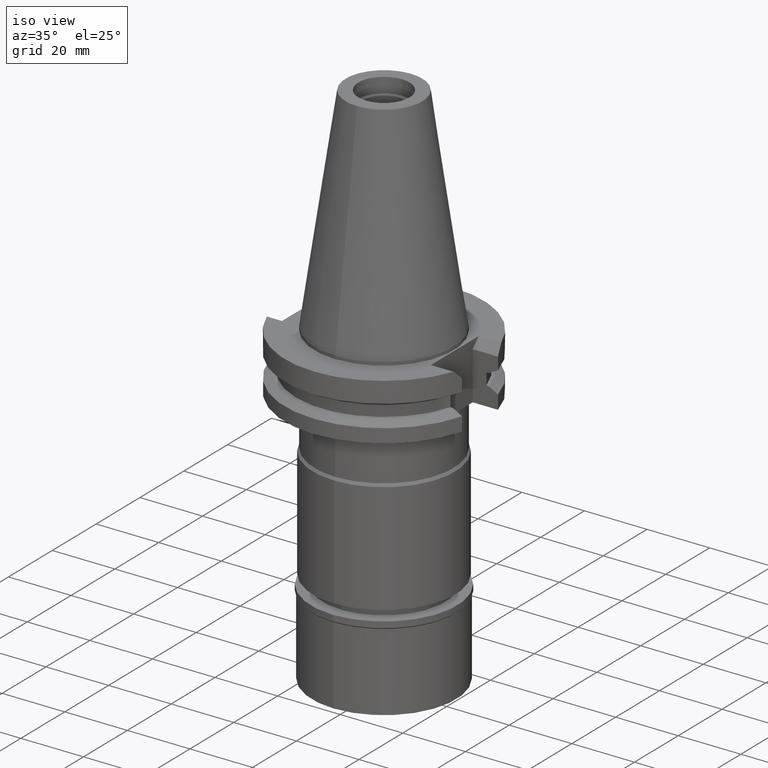
[diagram: clean part render]
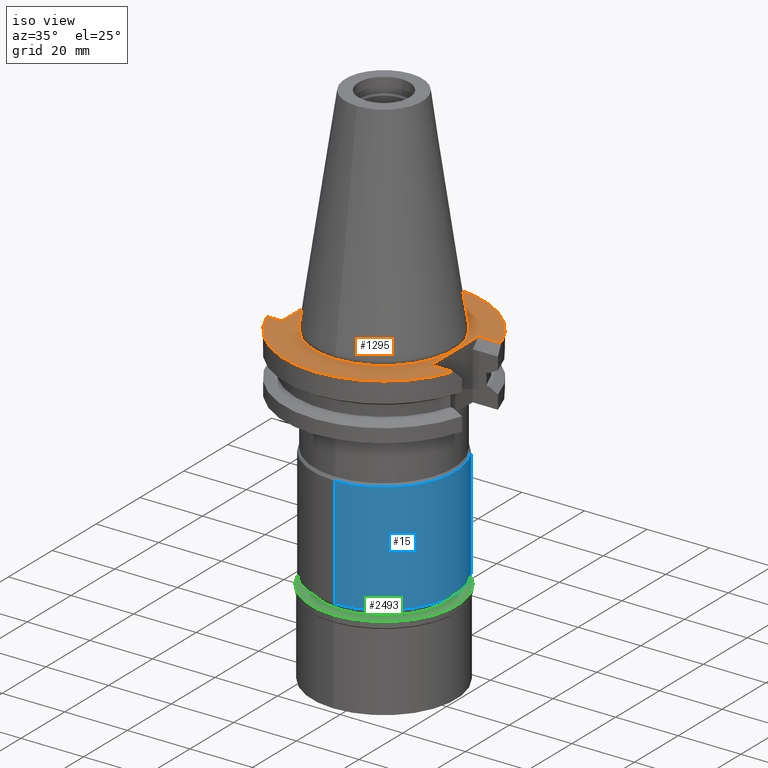
[diagram: same view with three faces highlighted in distinct colors, each labeled with its STEP entity id]
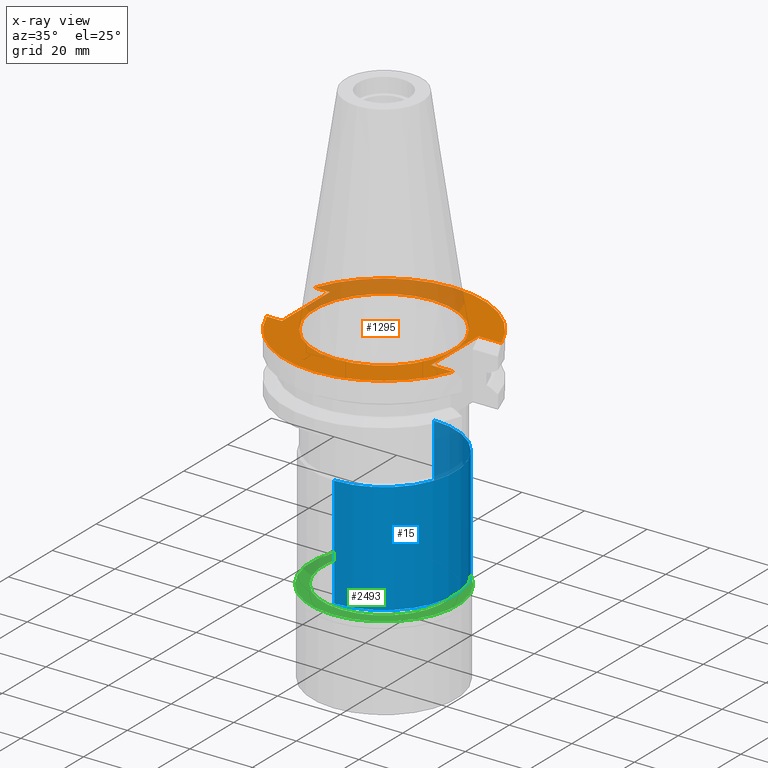
[diagram: x-ray of the same camera — body ghosted, the three highlighted faces saturated]
A machine part, iso view with three faces highlighted in distinct colors.
The next image is the same camera in x-ray (body ghosted, the three faces saturated) — at least one of them is partly hidden behind the body in this view.
Their STEP definitions:

[orange] entity #1295 — the highlighted planar face has unit normal (0, 0, -1).
#57 = EDGE_CURVE ( 'NONE', #220, #93, #2300, .T. ) ;
#93 = VERTEX_POINT ( 'NONE', #1527 ) ;
#121 = EDGE_LOOP ( 'NONE', ( #1887, #1173 ) ) ;
#161 = CARTESIAN_POINT ( 'NONE',  ( 0.0000000000000000000, 1.212400331155999925E-14, -1.000000000000000000 ) ) ;
#201 = DIRECTION ( 'NONE',  ( 0.0000000000000000000, -1.000000000000000000, 0.0000000000000000000 ) ) ;
#202 = EDGE_CURVE ( 'NONE', #1809, #1484, #353, .T. ) ;
#218 = CIRCLE ( 'NONE', #2462, 22.22500000000000142 ) ;
#220 = VERTEX_POINT ( 'NONE', #1641 ) ;
#246 = CIRCLE ( 'NONE', #459, 31.75000000000000000 ) ;
#251 = CARTESIAN_POINT ( 'NONE',  ( -29.82399034335000110, -10.89000000000000057, -1.000000000001000089 ) ) ;
#290 = VECTOR ( 'NONE', #1985, 1000.000000000000000 ) ;
#353 = LINE ( 'NONE', #2600, #1457 ) ;
#378 = CARTESIAN_POINT ( 'NONE',  ( 0.0000000000000000000, 2.157735811588000074E-14, -1.000000000000000000 ) ) ;
#400 = CARTESIAN_POINT ( 'NONE',  ( 22.57000000000000028, 10.89000000000000057, -1.000000000000000000 ) ) ;
#443 = CARTESIAN_POINT ( 'NONE',  ( -24.98000000000000043, -10.89000000000000057, -1.000000000000000000 ) ) ;
#459 = AXIS2_PLACEMENT_3D ( 'NONE', #378, #2976, #2687 ) ;
#505 = CARTESIAN_POINT ( 'NONE',  ( 22.57000000000000028, 10.89000000000000057, -1.000000000000000000 ) ) ;
#540 = EDGE_CURVE ( 'NONE', #1484, #2759, #1601, .T. ) ;
#633 = VERTEX_POINT ( 'NONE', #2549 ) ;
#651 = DIRECTION ( 'NONE',  ( 0.0000000000000000000, 0.0000000000000000000, -1.000000000000000000 ) ) ;
#665 = ORIENTED_EDGE ( 'NONE', *, *, #202, .T. ) ;
#798 = ORIENTED_EDGE ( 'NONE', *, *, #2531, .F. ) ;
#906 = DIRECTION ( 'NONE',  ( 1.000000000000000000, 5.877118954907999932E-14, 0.0000000000000000000 ) ) ;
#960 = CARTESIAN_POINT ( 'NONE',  ( 0.0000000000000000000, 2.157735811588000074E-14, -1.000000000000000000 ) ) ;
#986 = DIRECTION ( 'NONE',  ( 0.0000000000000000000, -1.000000000000000000, 0.0000000000000000000 ) ) ;
#989 = EDGE_CURVE ( 'NONE', #1809, #1712, #1501, .T. ) ;
#992 = DIRECTION ( 'NONE',  ( 0.0000000000000000000, 1.000000000000000000, 0.0000000000000000000 ) ) ;
#1003 = VERTEX_POINT ( 'NONE', #1950 ) ;
#1016 = CARTESIAN_POINT ( 'NONE',  ( -29.82399034335000110, 10.89000000000000057, -1.000000000000000000 ) ) ;
#1039 = DIRECTION ( 'NONE',  ( -1.000000000000000000, 8.727782216946000332E-14, 0.0000000000000000000 ) ) ;
#1058 = DIRECTION ( 'NONE',  ( 1.000000000000000000, -5.779166972325999752E-14, 0.0000000000000000000 ) ) ;
#1132 = FACE_BOUND ( 'NONE', #121, .T. ) ;
#1173 = ORIENTED_EDGE ( 'NONE', *, *, #3069, .F. ) ;
#1241 = AXIS2_PLACEMENT_3D ( 'NONE', #2406, #2941, #1409 ) ;
#1294 = EDGE_CURVE ( 'NONE', #93, #633, #1676, .T. ) ;
#1295 = ADVANCED_FACE ( 'NONE', ( #2117, #1132 ), #2898, .F. ) ;
#1369 = CARTESIAN_POINT ( 'NONE',  ( -24.98000000000000043, 10.89000000000000057, -1.000000000000000000 ) ) ;
#1399 = VERTEX_POINT ( 'NONE', #1846 ) ;
#1409 = DIRECTION ( 'NONE',  ( 0.0000000000000000000, 1.000000000000000000, 0.0000000000000000000 ) ) ;
#1423 = EDGE_CURVE ( 'NONE', #633, #2759, #246, .T. ) ;
#1457 = VECTOR ( 'NONE', #1825, 1000.000000000000000 ) ;
#1484 = VERTEX_POINT ( 'NONE', #443 ) ;
#1501 = LINE ( 'NONE', #3209, #290 ) ;
#1527 = CARTESIAN_POINT ( 'NONE',  ( 22.57000000000000028, -10.89000000000000057, -1.000000000000000000 ) ) ;
#1584 = CARTESIAN_POINT ( 'NONE',  ( -24.98000000000000043, -10.89000000000000057, -1.000000000000000000 ) ) ;
#1601 = LINE ( 'NONE', #1584, #2838 ) ;
#1641 = CARTESIAN_POINT ( 'NONE',  ( 22.57000000000000028, 10.89000000000000057, -1.000000000000000000 ) ) ;
#1662 = VECTOR ( 'NONE', #906, 1000.000000000000000 ) ;
#1676 = LINE ( 'NONE', #2157, #1662 ) ;
#1712 = VERTEX_POINT ( 'NONE', #1016 ) ;
#1787 = CIRCLE ( 'NONE', #2863, 22.22500000000000142 ) ;
#1809 = VERTEX_POINT ( 'NONE', #1369 ) ;
#1825 = DIRECTION ( 'NONE',  ( 0.0000000000000000000, -1.000000000000000000, 0.0000000000000000000 ) ) ;
#1846 = CARTESIAN_POINT ( 'NONE',  ( 29.82399034335000110, 10.89000000000000057, -1.000000000001000089 ) ) ;
#1884 = LINE ( 'NONE', #400, #2499 ) ;
#1887 = ORIENTED_EDGE ( 'NONE', *, *, #3148, .F. ) ;
#1950 = CARTESIAN_POINT ( 'NONE',  ( 0.0000000000000000000, 22.22500000000000142, -1.000000000000000000 ) ) ;
#1985 = DIRECTION ( 'NONE',  ( -1.000000000000000000, -8.727782216946000332E-14, 0.0000000000000000000 ) ) ;
#2003 = DIRECTION ( 'NONE',  ( 0.0000000000000000000, 0.0000000000000000000, 1.000000000000000000 ) ) ;
#2102 = DIRECTION ( 'NONE',  ( 0.0000000000000000000, -1.000000000000000000, 0.0000000000000000000 ) ) ;
#2117 = FACE_OUTER_BOUND ( 'NONE', #2282, .T. ) ;
#2157 = CARTESIAN_POINT ( 'NONE',  ( 22.57000000000000028, -10.89000000000000057, -1.000000000000000000 ) ) ;
#2282 = EDGE_LOOP ( 'NONE', ( #3003, #798, #2460, #665, #2414, #2560, #2404, #2730 ) ) ;
#2300 = LINE ( 'NONE', #505, #2995 ) ;
#2324 = VERTEX_POINT ( 'NONE', #2839 ) ;
#2404 = ORIENTED_EDGE ( 'NONE', *, *, #1294, .F. ) ;
#2406 = CARTESIAN_POINT ( 'NONE',  ( 0.0000000000000000000, 2.157735811588000074E-14, -1.000000000000000000 ) ) ;
#2414 = ORIENTED_EDGE ( 'NONE', *, *, #540, .T. ) ;
#2424 = EDGE_CURVE ( 'NONE', #220, #1399, #1884, .T. ) ;
#2427 = DIRECTION ( 'NONE',  ( 0.0000000000000000000, 0.0000000000000000000, 1.000000000000000000 ) ) ;
#2446 = CARTESIAN_POINT ( 'NONE',  ( 0.0000000000000000000, 2.157735811588000074E-14, -1.000000000000000000 ) ) ;
#2460 = ORIENTED_EDGE ( 'NONE', *, *, #989, .F. ) ;
#2462 = AXIS2_PLACEMENT_3D ( 'NONE', #2446, #2427, #201 ) ;
#2499 = VECTOR ( 'NONE', #1058, 1000.000000000000000 ) ;
#2531 = EDGE_CURVE ( 'NONE', #1712, #1399, #2648, .T. ) ;
#2549 = CARTESIAN_POINT ( 'NONE',  ( 29.82399034335000110, -10.89000000000000057, -1.000000000001000089 ) ) ;
#2560 = ORIENTED_EDGE ( 'NONE', *, *, #1423, .F. ) ;
#2600 = CARTESIAN_POINT ( 'NONE',  ( -24.98000000000000043, 10.89000000000000057, -1.000000000000000000 ) ) ;
#2648 = CIRCLE ( 'NONE', #1241, 31.75000000000000000 ) ;
#2687 = DIRECTION ( 'NONE',  ( 0.0000000000000000000, -1.000000000000000000, 0.0000000000000000000 ) ) ;
#2730 = ORIENTED_EDGE ( 'NONE', *, *, #57, .F. ) ;
#2759 = VERTEX_POINT ( 'NONE', #251 ) ;
#2838 = VECTOR ( 'NONE', #1039, 1000.000000000000000 ) ;
#2839 = CARTESIAN_POINT ( 'NONE',  ( 0.0000000000000000000, -22.22500000000000142, -1.000000000000000000 ) ) ;
#2863 = AXIS2_PLACEMENT_3D ( 'NONE', #960, #2003, #992 ) ;
#2898 = PLANE ( 'NONE',  #3208 ) ;
#2941 = DIRECTION ( 'NONE',  ( 0.0000000000000000000, 0.0000000000000000000, -1.000000000000000000 ) ) ;
#2976 = DIRECTION ( 'NONE',  ( 0.0000000000000000000, 0.0000000000000000000, -1.000000000000000000 ) ) ;
#2995 = VECTOR ( 'NONE', #986, 1000.000000000000000 ) ;
#3003 = ORIENTED_EDGE ( 'NONE', *, *, #2424, .T. ) ;
#3069 = EDGE_CURVE ( 'NONE', #2324, #1003, #218, .T. ) ;
#3148 = EDGE_CURVE ( 'NONE', #1003, #2324, #1787, .T. ) ;
#3208 = AXIS2_PLACEMENT_3D ( 'NONE', #161, #651, #2102 ) ;
#3209 = CARTESIAN_POINT ( 'NONE',  ( -24.98000000000000043, 10.89000000000000057, -1.000000000000000000 ) ) ;

[blue] entity #15 — the highlighted cylindrical surface (partial cylindrical patch) has radius 22.75 mm, axis along (0, 0, -1).
#15 = ADVANCED_FACE ( 'NONE', ( #2046 ), #2765, .T. ) ;
#29 = AXIS2_PLACEMENT_3D ( 'NONE', #2558, #1543, #2510 ) ;
#73 = CARTESIAN_POINT ( 'NONE',  ( 0.0000000000000000000, -22.75000000000000000, -35.90932667396999278 ) ) ;
#165 = DIRECTION ( 'NONE',  ( 0.0000000000000000000, 0.0000000000000000000, 1.000000000000000000 ) ) ;
#495 = CARTESIAN_POINT ( 'NONE',  ( 0.0000000000000000000, -22.75000000000000000, -71.40000000000000568 ) ) ;
#497 = ORIENTED_EDGE ( 'NONE', *, *, #770, .T. ) ;
#506 = EDGE_LOOP ( 'NONE', ( #3170, #1077, #497, #1151 ) ) ;
#622 = VECTOR ( 'NONE', #3144, 1000.000000000000000 ) ;
#653 = CARTESIAN_POINT ( 'NONE',  ( 0.0000000000000000000, 2.157735811588000074E-14, -71.40000000000000568 ) ) ;
#735 = EDGE_CURVE ( 'NONE', #2577, #2127, #1452, .T. ) ;
#770 = EDGE_CURVE ( 'NONE', #3082, #1419, #2482, .T. ) ;
#1072 = VECTOR ( 'NONE', #2477, 1000.000000000000000 ) ;
#1077 = ORIENTED_EDGE ( 'NONE', *, *, #2002, .T. ) ;
#1151 = ORIENTED_EDGE ( 'NONE', *, *, #2530, .F. ) ;
#1176 = CARTESIAN_POINT ( 'NONE',  ( 0.0000000000000000000, -22.75000000000000000, -35.90932667396999278 ) ) ;
#1419 = VERTEX_POINT ( 'NONE', #2605 ) ;
#1452 = CIRCLE ( 'NONE', #1850, 22.75000000000000000 ) ;
#1543 = DIRECTION ( 'NONE',  ( 0.0000000000000000000, 0.0000000000000000000, -1.000000000000000000 ) ) ;
#1850 = AXIS2_PLACEMENT_3D ( 'NONE', #2120, #1901, #2864 ) ;
#1901 = DIRECTION ( 'NONE',  ( 0.0000000000000000000, 0.0000000000000000000, -1.000000000000000000 ) ) ;
#1943 = CARTESIAN_POINT ( 'NONE',  ( 0.0000000000000000000, 22.75000000000000000, -35.90932667396999278 ) ) ;
#2002 = EDGE_CURVE ( 'NONE', #2127, #3082, #2230, .T. ) ;
#2046 = FACE_OUTER_BOUND ( 'NONE', #506, .T. ) ;
#2120 = CARTESIAN_POINT ( 'NONE',  ( 0.0000000000000000000, 0.0000000000000000000, -35.90932667396999278 ) ) ;
#2127 = VERTEX_POINT ( 'NONE', #73 ) ;
#2130 = AXIS2_PLACEMENT_3D ( 'NONE', #653, #165, #2609 ) ;
#2230 = LINE ( 'NONE', #1176, #1072 ) ;
#2477 = DIRECTION ( 'NONE',  ( 0.0000000000000000000, -4.134243202054000170E-14, -1.000000000000000000 ) ) ;
#2482 = CIRCLE ( 'NONE', #2130, 22.75000000000000000 ) ;
#2510 = DIRECTION ( 'NONE',  ( 0.0000000000000000000, -1.000000000000000000, 0.0000000000000000000 ) ) ;
#2530 = EDGE_CURVE ( 'NONE', #2577, #1419, #3158, .T. ) ;
#2558 = CARTESIAN_POINT ( 'NONE',  ( 0.0000000000000000000, 2.157735811588000074E-14, 76.19249999999999545 ) ) ;
#2577 = VERTEX_POINT ( 'NONE', #1943 ) ;
#2605 = CARTESIAN_POINT ( 'NONE',  ( 0.0000000000000000000, 22.75000000000000000, -71.40000000000000568 ) ) ;
#2609 = DIRECTION ( 'NONE',  ( 0.0000000000000000000, -1.000000000000000000, 0.0000000000000000000 ) ) ;
#2765 = CYLINDRICAL_SURFACE ( 'NONE', #29, 22.75000000000000000 ) ;
#2864 = DIRECTION ( 'NONE',  ( 0.0000000000000000000, 1.000000000000000000, 0.0000000000000000000 ) ) ;
#2927 = CARTESIAN_POINT ( 'NONE',  ( 0.0000000000000000000, 22.75000000000000000, -35.90932667396999278 ) ) ;
#3082 = VERTEX_POINT ( 'NONE', #495 ) ;
#3144 = DIRECTION ( 'NONE',  ( 0.0000000000000000000, 4.144253476151000212E-14, -1.000000000000000000 ) ) ;
#3158 = LINE ( 'NONE', #2927, #622 ) ;
#3170 = ORIENTED_EDGE ( 'NONE', *, *, #735, .T. ) ;

[green] entity #2493 — the highlighted planar face has unit normal (0, 0, -1).
#136 = EDGE_LOOP ( 'NONE', ( #277, #469 ) ) ;
#209 = DIRECTION ( 'NONE',  ( 0.0000000000000000000, 0.0000000000000000000, -1.000000000000000000 ) ) ;
#253 = AXIS2_PLACEMENT_3D ( 'NONE', #2433, #2182, #1212 ) ;
#277 = ORIENTED_EDGE ( 'NONE', *, *, #2709, .F. ) ;
#284 = DIRECTION ( 'NONE',  ( 0.0000000000000000000, 0.0000000000000000000, 1.000000000000000000 ) ) ;
#469 = ORIENTED_EDGE ( 'NONE', *, *, #990, .F. ) ;
#518 = DIRECTION ( 'NONE',  ( 0.0000000000000000000, 0.0000000000000000000, -1.000000000000000000 ) ) ;
#532 = DIRECTION ( 'NONE',  ( 0.0000000000000000000, 1.000000000000000000, 0.0000000000000000000 ) ) ;
#592 = ORIENTED_EDGE ( 'NONE', *, *, #2711, .F. ) ;
#696 = PLANE ( 'NONE',  #2805 ) ;
#795 = ORIENTED_EDGE ( 'NONE', *, *, #2551, .F. ) ;
#954 = VERTEX_POINT ( 'NONE', #2708 ) ;
#990 = EDGE_CURVE ( 'NONE', #954, #1554, #2187, .T. ) ;
#1056 = EDGE_LOOP ( 'NONE', ( #592, #795 ) ) ;
#1163 = CARTESIAN_POINT ( 'NONE',  ( 0.0000000000000000000, 19.50000000000000000, 0.0000000000000000000 ) ) ;
#1195 = FACE_OUTER_BOUND ( 'NONE', #1056, .T. ) ;
#1212 = DIRECTION ( 'NONE',  ( 0.0000000000000000000, -1.000000000000000000, 0.0000000000000000000 ) ) ;
#1302 = CIRCLE ( 'NONE', #3016, 19.50000000000000000 ) ;
#1465 = DIRECTION ( 'NONE',  ( 0.0000000000000000000, -1.000000000000000000, 0.0000000000000000000 ) ) ;
#1541 = DIRECTION ( 'NONE',  ( 0.0000000000000000000, 1.000000000000000000, 0.0000000000000000000 ) ) ;
#1554 = VERTEX_POINT ( 'NONE', #1163 ) ;
#1626 = CIRCLE ( 'NONE', #2095, 23.34999999999999787 ) ;
#1677 = CIRCLE ( 'NONE', #253, 23.34999999999999787 ) ;
#1711 = CARTESIAN_POINT ( 'NONE',  ( 0.0000000000000000000, 0.0000000000000000000, 0.0000000000000000000 ) ) ;
#1794 = CARTESIAN_POINT ( 'NONE',  ( 0.0000000000000000000, 23.34999999999999787, 0.0000000000000000000 ) ) ;
#1909 = CARTESIAN_POINT ( 'NONE',  ( 0.0000000000000000000, 0.0000000000000000000, 0.0000000000000000000 ) ) ;
#2095 = AXIS2_PLACEMENT_3D ( 'NONE', #2479, #518, #532 ) ;
#2182 = DIRECTION ( 'NONE',  ( 0.0000000000000000000, 0.0000000000000000000, -1.000000000000000000 ) ) ;
#2187 = CIRCLE ( 'NONE', #2947, 19.50000000000000000 ) ;
#2217 = CARTESIAN_POINT ( 'NONE',  ( 0.0000000000000000000, -23.34999999999999787, 0.0000000000000000000 ) ) ;
#2433 = CARTESIAN_POINT ( 'NONE',  ( 0.0000000000000000000, 0.0000000000000000000, 0.0000000000000000000 ) ) ;
#2479 = CARTESIAN_POINT ( 'NONE',  ( 0.0000000000000000000, 0.0000000000000000000, 0.0000000000000000000 ) ) ;
#2485 = VERTEX_POINT ( 'NONE', #2217 ) ;
#2493 = ADVANCED_FACE ( 'NONE', ( #1195, #3191 ), #696, .F. ) ;
#2551 = EDGE_CURVE ( 'NONE', #2485, #2652, #1677, .T. ) ;
#2652 = VERTEX_POINT ( 'NONE', #1794 ) ;
#2708 = CARTESIAN_POINT ( 'NONE',  ( 0.0000000000000000000, -19.50000000000000000, 0.0000000000000000000 ) ) ;
#2709 = EDGE_CURVE ( 'NONE', #1554, #954, #1302, .T. ) ;
#2711 = EDGE_CURVE ( 'NONE', #2652, #2485, #1626, .T. ) ;
#2739 = DIRECTION ( 'NONE',  ( 0.0000000000000000000, -1.000000000000000000, 0.0000000000000000000 ) ) ;
#2805 = AXIS2_PLACEMENT_3D ( 'NONE', #1909, #209, #1465 ) ;
#2947 = AXIS2_PLACEMENT_3D ( 'NONE', #1711, #2950, #2739 ) ;
#2950 = DIRECTION ( 'NONE',  ( 0.0000000000000000000, 0.0000000000000000000, 1.000000000000000000 ) ) ;
#3008 = CARTESIAN_POINT ( 'NONE',  ( 0.0000000000000000000, 0.0000000000000000000, 0.0000000000000000000 ) ) ;
#3016 = AXIS2_PLACEMENT_3D ( 'NONE', #3008, #284, #1541 ) ;
#3191 = FACE_BOUND ( 'NONE', #136, .T. ) ;